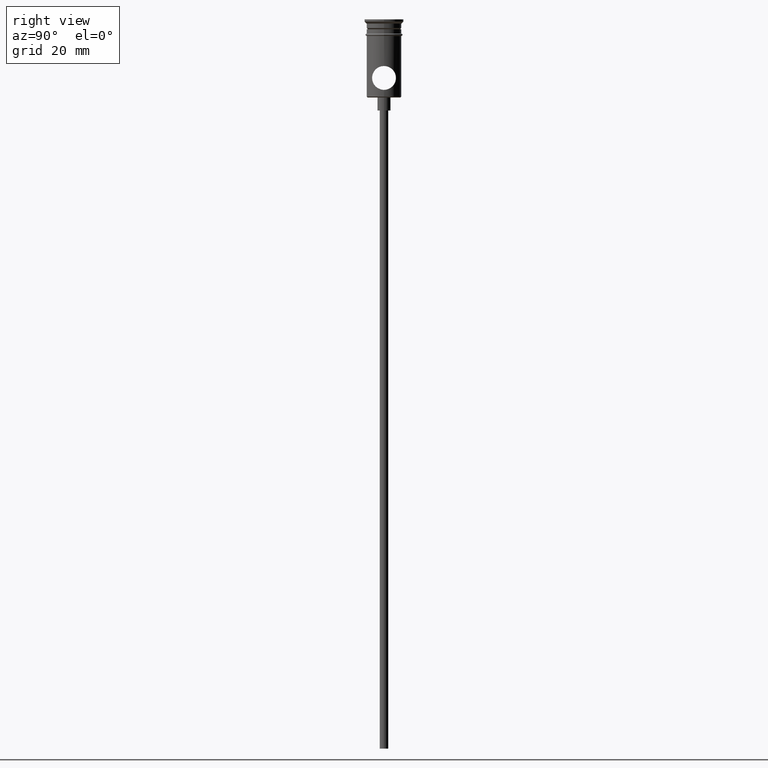
[diagram: clean part render]
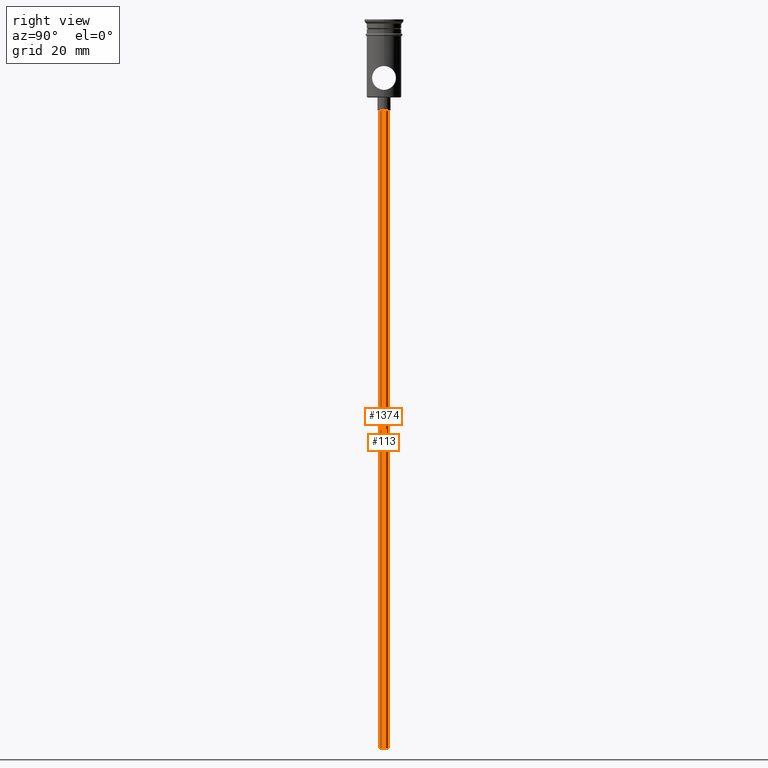
[diagram: same view with one multi-face feature highlighted, each face labeled with its STEP entity id]
A machine part, right view. The highlighted faces form ONE feature: a constant-radius fillet chain: 2 tangent blend faces with common blend radius 1 mm. The faces share edges in the B-rep.
Their STEP definitions:
[1] entity #113 (Cylinder):
#16 = VECTOR ( 'NONE', #80, 1000.000000000000000 ) ;
#30 = ORIENTED_EDGE ( 'NONE', *, *, #129, .F. ) ;
#31 = EDGE_CURVE ( 'NONE', #708, #893, #508, .T. ) ;
#80 = DIRECTION ( 'NONE',  ( -0.000000000000000000, -0.000000000000000000, 1.000000000000000000 ) ) ;
#113 = ADVANCED_FACE ( 'NONE', ( #206 ), #123, .T. ) ;
#123 = CYLINDRICAL_SURFACE ( 'NONE', #1143, 0.9999999999999997780 ) ;
#125 = VERTEX_POINT ( 'NONE', #861 ) ;
#129 = EDGE_CURVE ( 'NONE', #1298, #125, #423, .T. ) ;
#187 = CARTESIAN_POINT ( 'NONE',  ( 0.000000000000000000, 0.000000000000000000, -20.99999999999999645 ) ) ;
#206 = FACE_OUTER_BOUND ( 'NONE', #282, .T. ) ;
#212 = CARTESIAN_POINT ( 'NONE',  ( 0.9999999999999997780, 0.000000000000000000, -167.9999999999999716 ) ) ;
#274 = CARTESIAN_POINT ( 'NONE',  ( -0.9999999999999997780, 1.224646799147352961E-16, -167.9999999999999716 ) ) ;
#282 = EDGE_LOOP ( 'NONE', ( #305, #510, #666, #30 ) ) ;
#287 = CIRCLE ( 'NONE', #1139, 0.9999999999999997780 ) ;
#305 = ORIENTED_EDGE ( 'NONE', *, *, #678, .F. ) ;
#423 = LINE ( 'NONE', #212, #882 ) ;
#459 = DIRECTION ( 'NONE',  ( 0.000000000000000000, 0.000000000000000000, -1.000000000000000000 ) ) ;
#465 = AXIS2_PLACEMENT_3D ( 'NONE', #187, #1191, #1294 ) ;
#508 = LINE ( 'NONE', #274, #16 ) ;
#510 = ORIENTED_EDGE ( 'NONE', *, *, #31, .T. ) ;
#512 = CARTESIAN_POINT ( 'NONE',  ( -0.9999999999999997780, 1.224646799147352961E-16, -20.99999999999999645 ) ) ;
#636 = DIRECTION ( 'NONE',  ( -0.000000000000000000, -0.000000000000000000, 1.000000000000000000 ) ) ;
#666 = ORIENTED_EDGE ( 'NONE', *, *, #924, .T. ) ;
#671 = CARTESIAN_POINT ( 'NONE',  ( -0.9999999999999997780, 1.224646799147352961E-16, -167.9999999999999716 ) ) ;
#677 = CARTESIAN_POINT ( 'NONE',  ( 0.000000000000000000, 0.000000000000000000, -167.9999999999999716 ) ) ;
#678 = EDGE_CURVE ( 'NONE', #708, #1298, #287, .T. ) ;
#708 = VERTEX_POINT ( 'NONE', #671 ) ;
#760 = CIRCLE ( 'NONE', #465, 0.9999999999999997780 ) ;
#861 = CARTESIAN_POINT ( 'NONE',  ( 0.9999999999999997780, 0.000000000000000000, -20.99999999999999645 ) ) ;
#882 = VECTOR ( 'NONE', #1213, 1000.000000000000000 ) ;
#893 = VERTEX_POINT ( 'NONE', #512 ) ;
#896 = DIRECTION ( 'NONE',  ( -1.000000000000000000, 0.000000000000000000, 0.000000000000000000 ) ) ;
#924 = EDGE_CURVE ( 'NONE', #893, #125, #760, .T. ) ;
#989 = CARTESIAN_POINT ( 'NONE',  ( 0.000000000000000000, 0.000000000000000000, -167.9999999999999716 ) ) ;
#1056 = CARTESIAN_POINT ( 'NONE',  ( 0.9999999999999997780, 0.000000000000000000, -167.9999999999999716 ) ) ;
#1081 = DIRECTION ( 'NONE',  ( 1.000000000000000000, 0.000000000000000000, 0.000000000000000000 ) ) ;
#1139 = AXIS2_PLACEMENT_3D ( 'NONE', #677, #459, #896 ) ;
#1143 = AXIS2_PLACEMENT_3D ( 'NONE', #989, #636, #1081 ) ;
#1191 = DIRECTION ( 'NONE',  ( 0.000000000000000000, 0.000000000000000000, -1.000000000000000000 ) ) ;
#1213 = DIRECTION ( 'NONE',  ( -0.000000000000000000, -0.000000000000000000, 1.000000000000000000 ) ) ;
#1294 = DIRECTION ( 'NONE',  ( -1.000000000000000000, 0.000000000000000000, 0.000000000000000000 ) ) ;
#1298 = VERTEX_POINT ( 'NONE', #1056 ) ;
[2] entity #1374 (Cylinder):
#16 = VECTOR ( 'NONE', #80, 1000.000000000000000 ) ;
#31 = EDGE_CURVE ( 'NONE', #708, #893, #508, .T. ) ;
#80 = DIRECTION ( 'NONE',  ( -0.000000000000000000, -0.000000000000000000, 1.000000000000000000 ) ) ;
#88 = ORIENTED_EDGE ( 'NONE', *, *, #240, .F. ) ;
#125 = VERTEX_POINT ( 'NONE', #861 ) ;
#126 = AXIS2_PLACEMENT_3D ( 'NONE', #686, #1127, #664 ) ;
#129 = EDGE_CURVE ( 'NONE', #1298, #125, #423, .T. ) ;
#146 = CYLINDRICAL_SURFACE ( 'NONE', #1190, 0.9999999999999997780 ) ;
#212 = CARTESIAN_POINT ( 'NONE',  ( 0.9999999999999997780, 0.000000000000000000, -167.9999999999999716 ) ) ;
#240 = EDGE_CURVE ( 'NONE', #1298, #708, #1363, .T. ) ;
#249 = DIRECTION ( 'NONE',  ( 1.000000000000000000, 0.000000000000000000, 0.000000000000000000 ) ) ;
#274 = CARTESIAN_POINT ( 'NONE',  ( -0.9999999999999997780, 1.224646799147352961E-16, -167.9999999999999716 ) ) ;
#371 = EDGE_LOOP ( 'NONE', ( #753, #88, #470, #585 ) ) ;
#423 = LINE ( 'NONE', #212, #882 ) ;
#470 = ORIENTED_EDGE ( 'NONE', *, *, #129, .T. ) ;
#477 = CARTESIAN_POINT ( 'NONE',  ( 0.000000000000000000, 0.000000000000000000, -20.99999999999999645 ) ) ;
#508 = LINE ( 'NONE', #274, #16 ) ;
#512 = CARTESIAN_POINT ( 'NONE',  ( -0.9999999999999997780, 1.224646799147352961E-16, -20.99999999999999645 ) ) ;
#559 = AXIS2_PLACEMENT_3D ( 'NONE', #477, #1129, #1249 ) ;
#585 = ORIENTED_EDGE ( 'NONE', *, *, #1382, .T. ) ;
#664 = DIRECTION ( 'NONE',  ( -1.000000000000000000, 0.000000000000000000, 0.000000000000000000 ) ) ;
#671 = CARTESIAN_POINT ( 'NONE',  ( -0.9999999999999997780, 1.224646799147352961E-16, -167.9999999999999716 ) ) ;
#686 = CARTESIAN_POINT ( 'NONE',  ( 0.000000000000000000, 0.000000000000000000, -167.9999999999999716 ) ) ;
#708 = VERTEX_POINT ( 'NONE', #671 ) ;
#753 = ORIENTED_EDGE ( 'NONE', *, *, #31, .F. ) ;
#861 = CARTESIAN_POINT ( 'NONE',  ( 0.9999999999999997780, 0.000000000000000000, -20.99999999999999645 ) ) ;
#882 = VECTOR ( 'NONE', #1213, 1000.000000000000000 ) ;
#893 = VERTEX_POINT ( 'NONE', #512 ) ;
#903 = CIRCLE ( 'NONE', #559, 0.9999999999999997780 ) ;
#913 = CARTESIAN_POINT ( 'NONE',  ( 0.000000000000000000, 0.000000000000000000, -167.9999999999999716 ) ) ;
#1056 = CARTESIAN_POINT ( 'NONE',  ( 0.9999999999999997780, 0.000000000000000000, -167.9999999999999716 ) ) ;
#1127 = DIRECTION ( 'NONE',  ( 0.000000000000000000, 0.000000000000000000, -1.000000000000000000 ) ) ;
#1129 = DIRECTION ( 'NONE',  ( 0.000000000000000000, 0.000000000000000000, -1.000000000000000000 ) ) ;
#1159 = FACE_OUTER_BOUND ( 'NONE', #371, .T. ) ;
#1190 = AXIS2_PLACEMENT_3D ( 'NONE', #913, #1257, #249 ) ;
#1213 = DIRECTION ( 'NONE',  ( -0.000000000000000000, -0.000000000000000000, 1.000000000000000000 ) ) ;
#1249 = DIRECTION ( 'NONE',  ( -1.000000000000000000, 0.000000000000000000, 0.000000000000000000 ) ) ;
#1257 = DIRECTION ( 'NONE',  ( -0.000000000000000000, -0.000000000000000000, 1.000000000000000000 ) ) ;
#1298 = VERTEX_POINT ( 'NONE', #1056 ) ;
#1363 = CIRCLE ( 'NONE', #126, 0.9999999999999997780 ) ;
#1374 = ADVANCED_FACE ( 'NONE', ( #1159 ), #146, .T. ) ;
#1382 = EDGE_CURVE ( 'NONE', #125, #893, #903, .T. ) ;